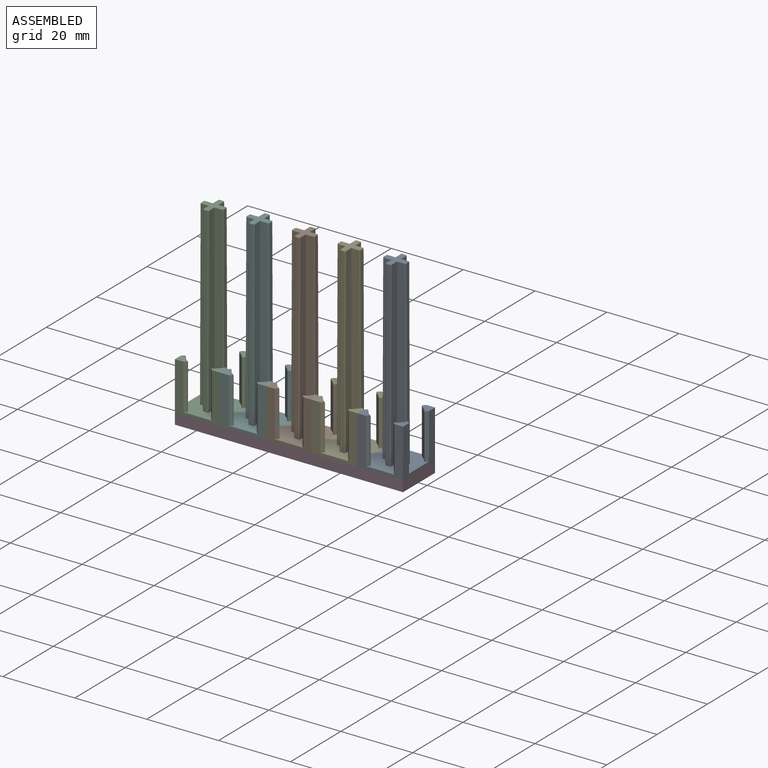
[diagram: assembled view]
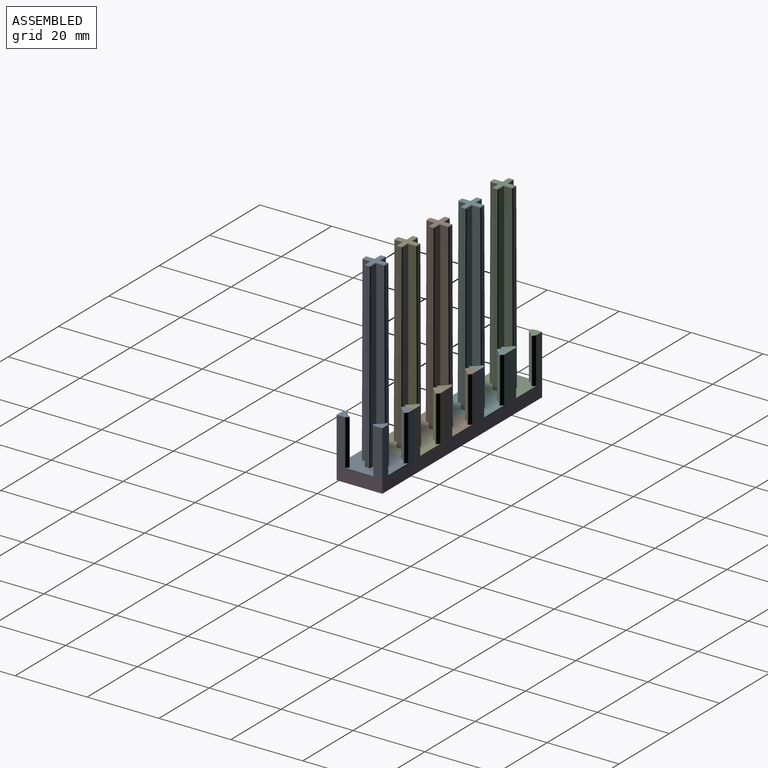
[diagram: assembled view, second angle]
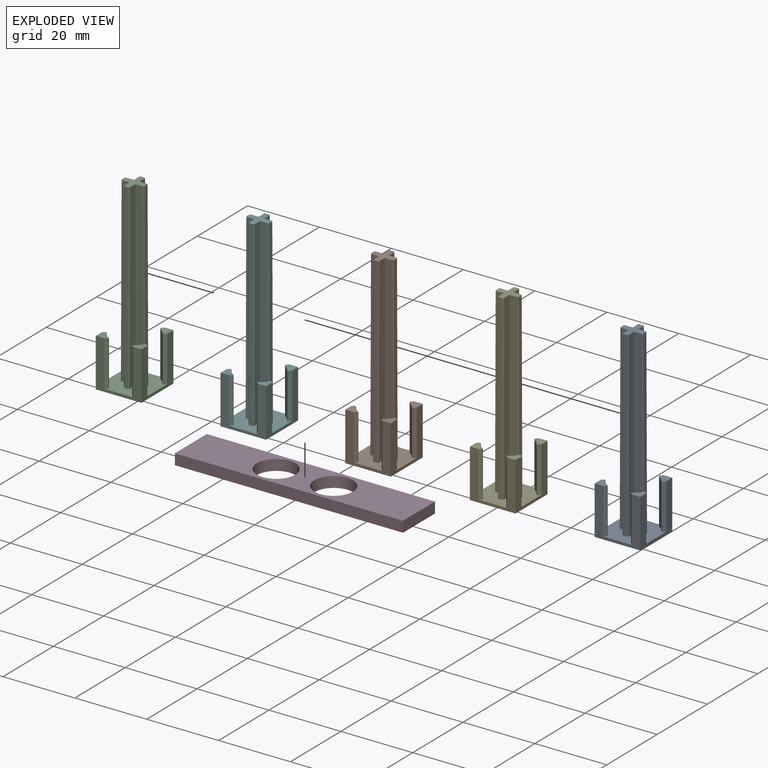
[diagram: exploded view]
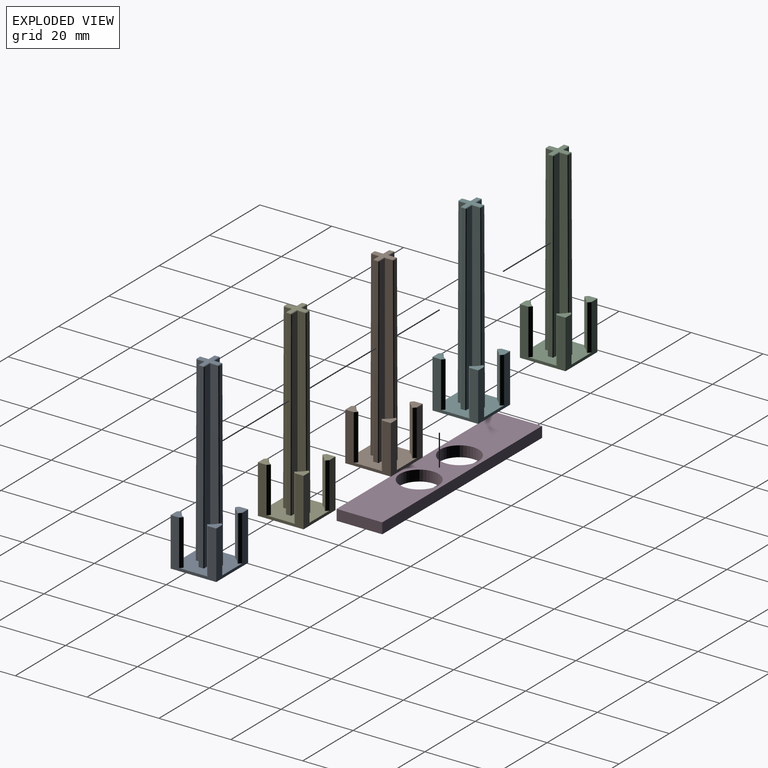
[diagram: exploded view, second angle]
ASSEMBLY  parts=6 mates=5
PART A: 75 faces, bbox 12.7x12.7x51.6 mm
  f0: plane 12.7x12.7mm, normal (0,0,1), area 117.7mm2, adj f1,f2,f3,f4,f6,f7,f8,f10
  f1: plane 13.46x12.7mm, normal (0,-1,0), area 70.2mm2, adj f0,f2,f4,f5,f6,f9,f11,f13
  f2: plane 13.46x12.7mm, normal (1,0,0), area 70.2mm2, adj f0,f1,f3,f5,f12,f13,f19,f21
  f3: plane 13.46x12.7mm, normal (0,1,0), area 70.2mm2, adj f0,f2,f4,f5,f15,f17,f20,f21
  f4: plane 13.46x12.7mm, normal (-1,0,0), area 70.2mm2, adj f0,f1,f3,f5,f8,f9,f16,f17
  f5: plane 12.7x12.7mm, normal (0,0,-1), area 161.3mm2, adj f1,f2,f3,f4
  f6: plane 12.7x0.6mm, normal (0.71,-0.71,0), area 10.8mm2, adj f0,f1,f9,f66
  f7: cylinder r=6.35mm len=12.45mm, axis (0,0,-1), area 34.5mm2, adj f0,f66,f67,f68
  f8: plane 12.7x0.6mm, normal (-0.71,0.71,0), area 10.8mm2, adj f0,f4,f9,f68
  f9: plane 3.02x3.02mm, normal (0,0,1), area 5.4mm2, adj f1,f4,f6,f8,f66,f67,f68
  f10: cylinder r=6.35mm len=12.45mm, axis (0,0,-1), area 34.5mm2, adj f0,f63,f64,f65
  f11: plane 12.7x0.6mm, normal (-0.71,-0.71,0), area 10.8mm2, adj f0,f1,f13,f63
  f12: plane 12.7x0.6mm, normal (0.71,0.71,0), area 10.8mm2, adj f0,f2,f13,f65
  f13: plane 3.02x3.02mm, normal (0,0,1), area 5.4mm2, adj f1,f2,f11,f12,f63,f64,f65
  f14: cylinder r=6.35mm len=12.45mm, axis (0,0,-1), area 34.5mm2, adj f0,f72,f73,f74
  f15: plane 12.7x0.6mm, normal (0.71,0.71,0), area 10.8mm2, adj f0,f3,f17,f72
  f16: plane 12.7x0.6mm, normal (-0.71,-0.71,0), area 10.8mm2, adj f0,f4,f17,f74
  f17: plane 3.02x3.02mm, normal (0,0,1), area 5.4mm2, adj f3,f4,f15,f16,f72,f73,f74
  f18: cylinder r=6.35mm len=12.45mm, axis (0,0,-1), area 34.5mm2, adj f0,f69,f70,f71
  f19: plane 12.7x0.6mm, normal (0.71,-0.71,0), area 10.8mm2, adj f0,f2,f21,f71
  f20: plane 12.7x0.6mm, normal (-0.71,0.71,0), area 10.8mm2, adj f0,f3,f21,f69
  f21: plane 3.02x3.02mm, normal (0,0,1), area 5.4mm2, adj f2,f3,f19,f20,f69,f70,f71
  f22: plane 50.55x2.3mm, normal (0,1,0), area 112mm2, adj f0,f33,f59,f62
  f23: plane 50.55x1.08mm, normal (-1,0,0), area 54.6mm2, adj f0,f56,f60,f62
  f24: plane 50.55x2.3mm, normal (0,-1,0), area 112mm2, adj f0,f25,f55,f56
  f25: plane 50.55x2.3mm, normal (-1,0,0), area 112mm2, adj f0,f24,f48,f53
  f26: plane 50.55x1.08mm, normal (0,-1,0), area 54.6mm2, adj f0,f42,f47,f48
  f27: plane 50.55x2.3mm, normal (1,0,0), area 112mm2, adj f0,f28,f41,f42
  f28: plane 50.55x2.3mm, normal (0,-1,0), area 112mm2, adj f0,f27,f35,f39
  f29: plane 50.55x1.08mm, normal (1,0,0), area 54.6mm2, adj f0,f35,f37,f38
  f30: plane 50.55x2.3mm, normal (0,1,0), area 112mm2, adj f0,f31,f37,f43
  f31: plane 50.55x2.3mm, normal (1,0,0), area 112mm2, adj f0,f30,f45,f46
  f32: plane 50.55x1.08mm, normal (0,1,0), area 54.6mm2, adj f0,f45,f51,f52
  f33: plane 50.55x2.3mm, normal (-1,0,0), area 112mm2, adj f0,f22,f51,f57
  f34: plane 5.84x5.84mm, normal (0,0,1), area 11.5mm2, adj f38,f39,f41,f43,f46,f47,f52,f53
  f35: cylinder r=0.25mm len=50.55mm, axis (0,0,-1), area 20.2mm2, adj f0,f28,f29,f36
  f36: sphere r=0.25mm, area 0.1mm2, adj f35,f38,f39
  f37: cylinder r=0.25mm len=50.55mm, axis (0,0,-1), area 20.2mm2, adj f0,f29,f30,f40
  f38: cylinder r=0.25mm len=1.08mm, axis (0,-1,0), area 0.4mm2, adj f29,f34,f36,f40
  f39: cylinder r=0.25mm len=2.38mm, axis (-1,0,0), area 0.9mm2, adj f28,f34,f36,f41
  f40: sphere r=0.25mm, area 0.1mm2, adj f37,f38,f43
  f41: cylinder r=0.25mm len=2.38mm, axis (0,-1,0), area 0.9mm2, adj f27,f34,f39,f44
  f42: cylinder r=0.25mm len=50.55mm, axis (0,0,-1), area 20.2mm2, adj f0,f26,f27,f44
  f43: cylinder r=0.25mm len=2.38mm, axis (1,0,0), area 0.9mm2, adj f30,f34,f40,f46
  f44: sphere r=0.25mm, area 0.1mm2, adj f41,f42,f47
  f45: cylinder r=0.25mm len=50.55mm, axis (0,0,-1), area 20.2mm2, adj f0,f31,f32,f49
  f46: cylinder r=0.25mm len=2.38mm, axis (0,-1,0), area 0.9mm2, adj f31,f34,f43,f49
  f47: cylinder r=0.25mm len=1.08mm, axis (-1,0,0), area 0.4mm2, adj f26,f34,f44,f50
  f48: cylinder r=0.25mm len=50.55mm, axis (0,0,-1), area 20.2mm2, adj f0,f25,f26,f50
  f49: sphere r=0.25mm, area 0.1mm2, adj f45,f46,f52
  f50: sphere r=0.25mm, area 0.1mm2, adj f47,f48,f53
  f51: cylinder r=0.25mm len=50.55mm, axis (0,0,-1), area 20.2mm2, adj f0,f32,f33,f54
  f52: cylinder r=0.25mm len=1.08mm, axis (1,0,0), area 0.4mm2, adj f32,f34,f49,f54
  f53: cylinder r=0.25mm len=2.38mm, axis (0,1,0), area 0.9mm2, adj f25,f34,f50,f55
  f54: sphere r=0.25mm, area 0.1mm2, adj f51,f52,f57
  f55: cylinder r=0.25mm len=2.38mm, axis (-1,0,0), area 0.9mm2, adj f24,f34,f53,f58
  f56: cylinder r=0.25mm len=50.55mm, axis (0,0,-1), area 20.2mm2, adj f0,f23,f24,f58
  f57: cylinder r=0.25mm len=2.38mm, axis (0,1,0), area 0.9mm2, adj f33,f34,f54,f59
  f58: sphere r=0.25mm, area 0.1mm2, adj f55,f56,f60
  f59: cylinder r=0.25mm len=2.38mm, axis (1,0,0), area 0.9mm2, adj f22,f34,f57,f61
  f60: cylinder r=0.25mm len=1.08mm, axis (0,1,0), area 0.4mm2, adj f23,f34,f58,f61
  f61: sphere r=0.25mm, area 0.1mm2, adj f59,f60,f62
  f62: cylinder r=0.25mm len=50.55mm, axis (0,0,-1), area 20.2mm2, adj f0,f22,f23,f61
  f63: cylinder r=0.25mm len=12.7mm, axis (0,0,-1), area 5.7mm2, adj f0,f10,f11,f13,f64
  f64: torus R=6.6mm, axis (0,0,1), area 1.2mm2, adj f10,f13,f63,f65
  f65: cylinder r=0.25mm len=12.7mm, axis (0,0,-1), area 5.7mm2, adj f0,f10,f12,f13,f64
  f66: cylinder r=0.25mm len=12.7mm, axis (0,0,-1), area 5.7mm2, adj f0,f6,f7,f9,f67
  f67: torus R=6.6mm, axis (0,0,1), area 1.2mm2, adj f7,f9,f66,f68
  f68: cylinder r=0.25mm len=12.7mm, axis (0,0,-1), area 5.7mm2, adj f0,f7,f8,f9,f67
  f69: cylinder r=0.25mm len=12.7mm, axis (0,0,-1), area 5.7mm2, adj f0,f18,f20,f21,f70
  f70: torus R=6.6mm, axis (0,0,1), area 1.2mm2, adj f18,f21,f69,f71
  f71: cylinder r=0.25mm len=12.7mm, axis (0,0,-1), area 5.7mm2, adj f0,f18,f19,f21,f70
  f72: cylinder r=0.25mm len=12.7mm, axis (0,0,-1), area 5.7mm2, adj f0,f14,f15,f17,f73
  f73: torus R=6.6mm, axis (0,0,1), area 1.2mm2, adj f14,f17,f72,f74
  f74: cylinder r=0.25mm len=12.7mm, axis (0,0,-1), area 5.7mm2, adj f0,f14,f16,f17,f73
PART B: same geometry as A
PART C: same geometry as A
PART D: 8 faces, bbox 63.5x12.7x3 mm
  f0: plane 63.5x3mm, normal (0,1,0), area 190.5mm2, adj f1,f4,f6,f7
  f1: plane 12.7x3mm, normal (-1,0,0), area 38.1mm2, adj f0,f2,f6,f7
  f2: plane 63.5x3mm, normal (0,-1,0), area 190.5mm2, adj f1,f4,f6,f7
  f3: cylinder r=5.38mm len=10.75mm, axis (0,0,-1), area 101.3mm2, adj f6,f7
  f4: plane 12.7x3mm, normal (1,0,0), area 38.1mm2, adj f0,f2,f6,f7
  f5: cylinder r=5.38mm len=10.75mm, axis (0,0,-1), area 101.3mm2, adj f6,f7
  f6: plane 63.5x12.7mm, normal (0,0,1), area 624.9mm2, adj f0,f1,f2,f3,f4,f5
  f7: plane 63.5x12.7mm, normal (0,0,-1), area 624.9mm2, adj f0,f1,f2,f3,f4,f5
PART E: same geometry as A
PART F: same geometry as A
PLACE A t=(25.4,0,0.76)mm
PLACE B t=(0,0,0.76)mm
PLACE C t=(-25.4,0,0.76)mm
PLACE D rot(axis=(1,0,0),180deg) t=(0,0,0)mm
PLACE E t=(12.7,0,0.76)mm
PLACE F t=(-12.7,0,0.76)mm
MATE fastened F.f2 <-> B.f4  axis (1,0,0) through (-6.35,0,0.76)mm
MATE fastened B.f2 <-> E.f4  axis (1,0,0) through (6.35,0,0.76)mm
MATE fastened C.f2 <-> F.f4  axis (1,0,0) through (-19.05,0,0.76)mm
MATE fastened D.f7 <-> B.f7  axis (0,0,-1) through (0,0,0)mm
MATE fastened E.f2 <-> A.f4  axis (1,0,0) through (19.05,0,0.76)mm
